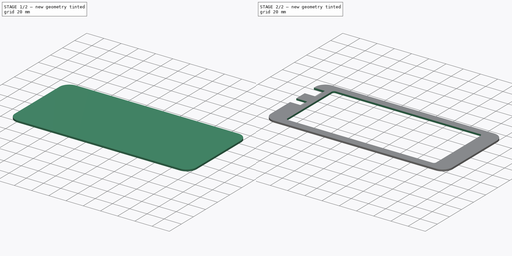
[diagram: build sequence overview — one tinted view per stage of 2, left to right]
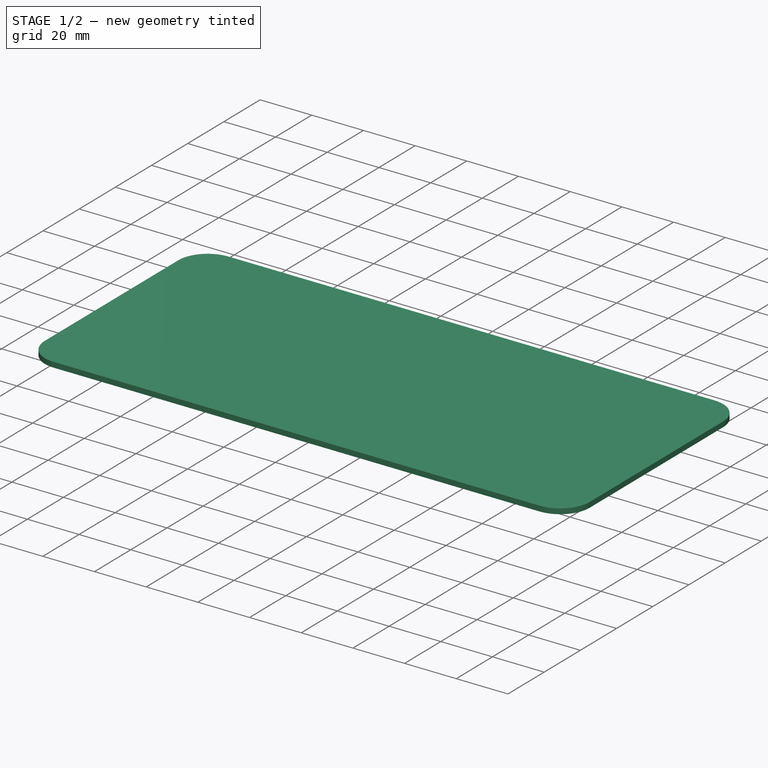
[diagram: stage 1 of 2 — iso view after this stage's code; geometry added in this stage tinted green]
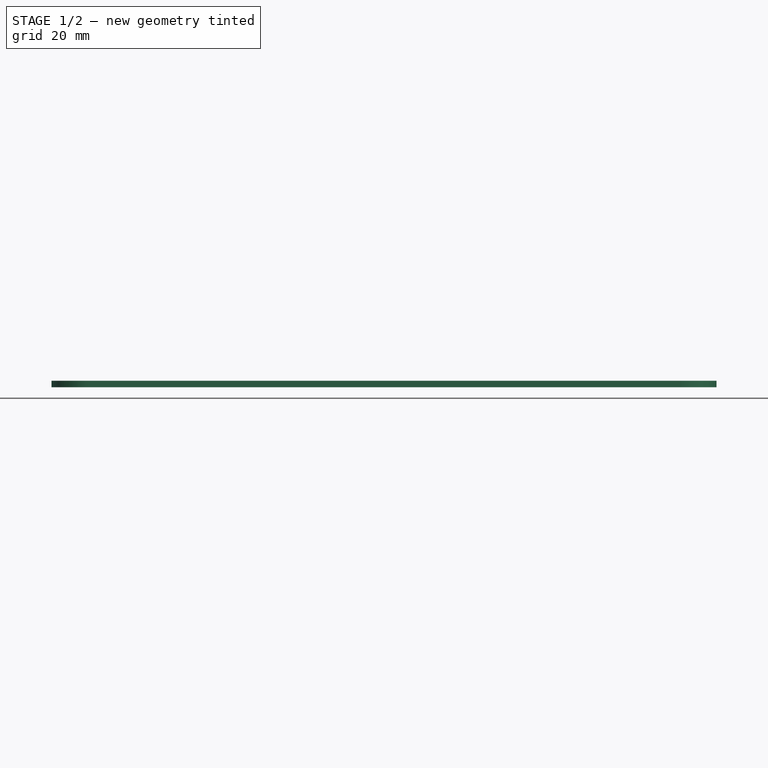
[diagram: stage 1 of 2 — front view after this stage's code; geometry added in this stage tinted green]
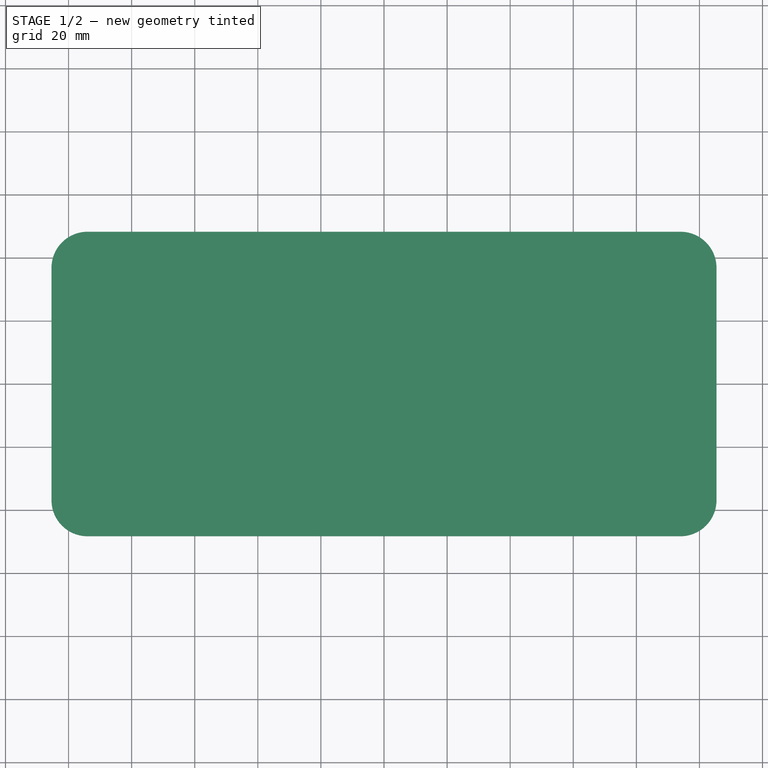
[diagram: stage 1 of 2 — top view after this stage's code; geometry added in this stage tinted green]
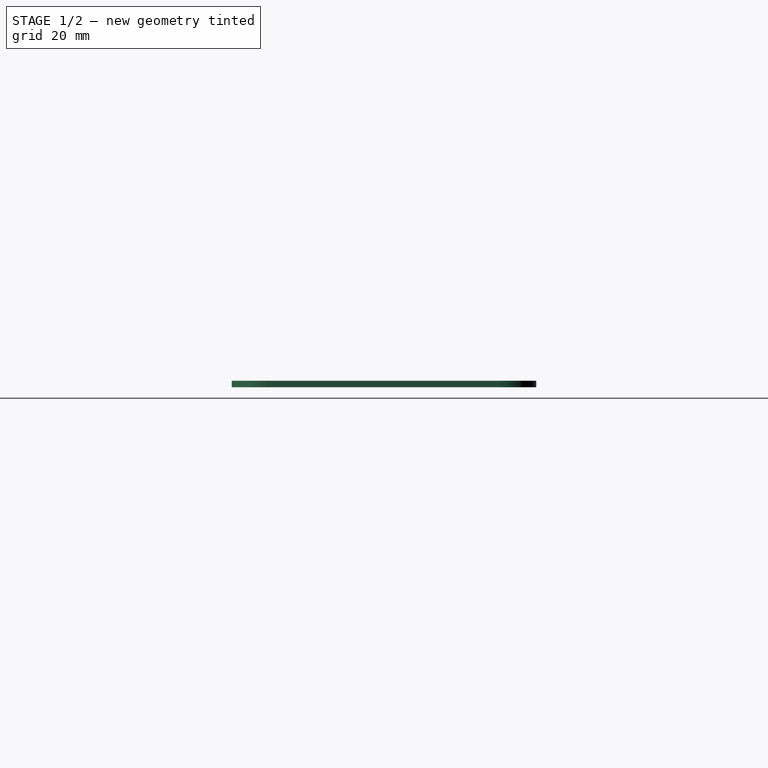
[diagram: stage 1 of 2 — right view after this stage's code; geometry added in this stage tinted green]
FCSTD DOCUMENT  (FreeCAD 0.20R29603 (Git))
Label: Front
License: All rights reserved
LicenseURL: http://en.wikipedia.org/wiki/All_rights_reserved
objects: Sketcher::SketchObject×2, PartDesign::Pad×1, PartDesign::Pocket×1, PartDesign::Body×1
note: 7 computed .brp shape members not serialized (recipe doc carries the construction recipe); baked Part::Feature solids carry a one-line shape summary decoded from their .brp

FEATURE [Sketcher::SketchObject] Sketch
  FullyConstrained = true
  MapMode = 5
  Support = -> [XY_Plane]
  sketch-geometry (10):
    g0: ArcOfCircle CenterX=-93.98 CenterY=36.83 CenterZ=0 NormalX=0 NormalY=0 NormalZ=1 AngleXU=0 Radius=11.43 StartAngle=1.5708 EndAngle=3.14159
    g1: LineSegment StartX=-93.98 StartY=48.26 StartZ=0 EndX=93.98 EndY=48.26 EndZ=0
    g2: ArcOfCircle CenterX=93.98 CenterY=36.83 CenterZ=0 NormalX=0 NormalY=0 NormalZ=1 AngleXU=0 Radius=11.43 StartAngle=-2.656e-13 EndAngle=1.5708
    g3: LineSegment StartX=105.41 StartY=36.83 StartZ=0 EndX=105.41 EndY=-36.83 EndZ=0
    g4: ArcOfCircle CenterX=93.98 CenterY=-36.83 CenterZ=0 NormalX=0 NormalY=0 NormalZ=1 AngleXU=0 Radius=11.43 StartAngle=4.71239 EndAngle=6.28319
    g5: LineSegment StartX=93.98 StartY=-48.26 StartZ=0 EndX=-93.98 EndY=-48.26 EndZ=0
    g6: ArcOfCircle CenterX=-93.98 CenterY=-36.83 CenterZ=0 NormalX=0 NormalY=0 NormalZ=1 AngleXU=0 Radius=11.43 StartAngle=3.14159 EndAngle=4.71239
    g7: LineSegment StartX=-105.41 StartY=-36.83 StartZ=0 EndX=-105.41 EndY=36.83 EndZ=0
    g8: GeomPoint X=-105.41 Y=48.26 Z=0
    g9: GeomPoint X=105.41 Y=-48.26 Z=0
  constraints (22):
    c: Tangent(g0,g1) = 1.5708
    c: Tangent(g1,g2) = 1.5708
    c: Tangent(g2,g3) = 1.5708
    c: Tangent(g3,g4) = 1.5708
    c: Tangent(g4,g5) = 1.5708
    c: Tangent(g5,g6) = 1.5708
    c: Tangent(g6,g7) = 1.5708
    c: Tangent(g7,g0) = 1.5708
    c: Horizontal(g1)
    c: Horizontal(g5)
    c: Vertical(g3)
    c: Vertical(g7)
    c: Equal(g2,g4)
    c: PointOnObject(g8,g1)
    c: PointOnObject(g8,g7)
    c: PointOnObject(g9,g3)
    c: PointOnObject(g9,g5)
    c: Symmetric(g0,g2,g-2)
    c: Symmetric(g5,g0,g-1)
    c: DistanceY(g4,g1) = 96.52
    c: DistanceX(g0,g2) = 210.82
    c: Radius(g2) = 11.43
FEATURE [PartDesign::Pad] Pad
  Direction = (0,0,1)
  Length = 2.032
  Length2 = 10
  Profile = -> Sketch
  ReferenceAxis = -> Sketch [N_Axis]
  Type = 0
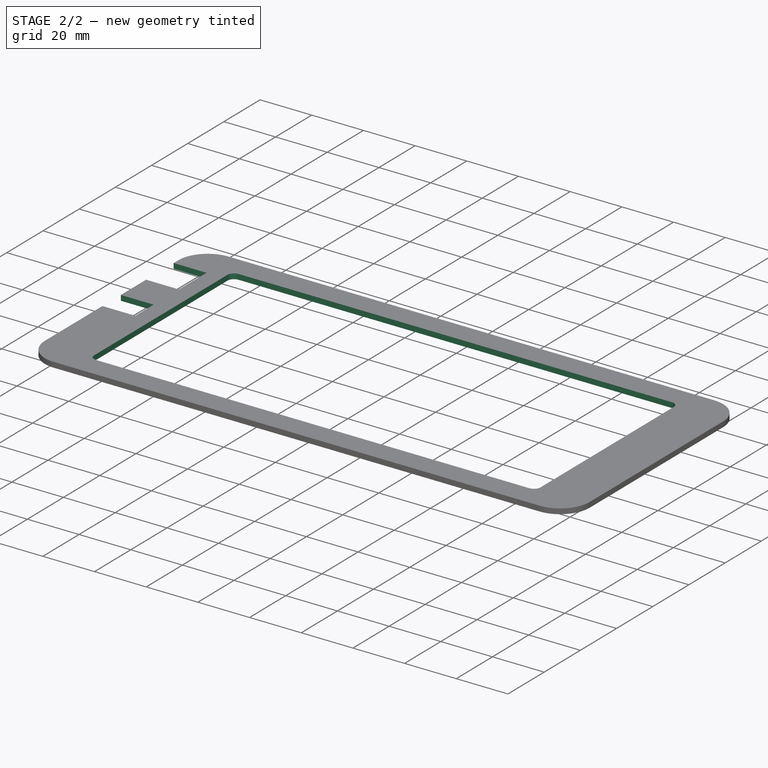
[diagram: stage 2 of 2 — iso view after this stage's code; geometry added in this stage tinted green]
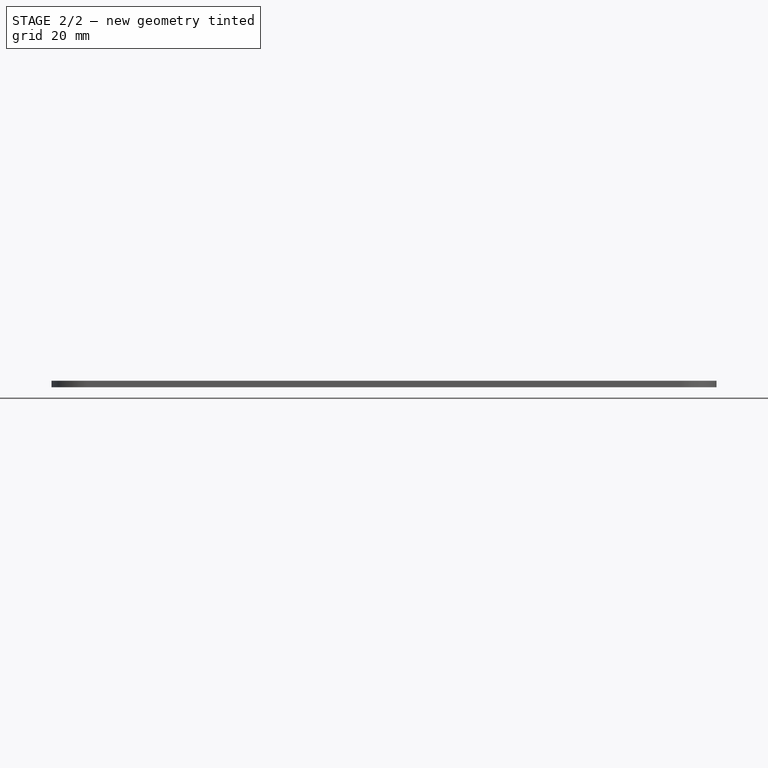
[diagram: stage 2 of 2 — front view after this stage's code; geometry added in this stage tinted green]
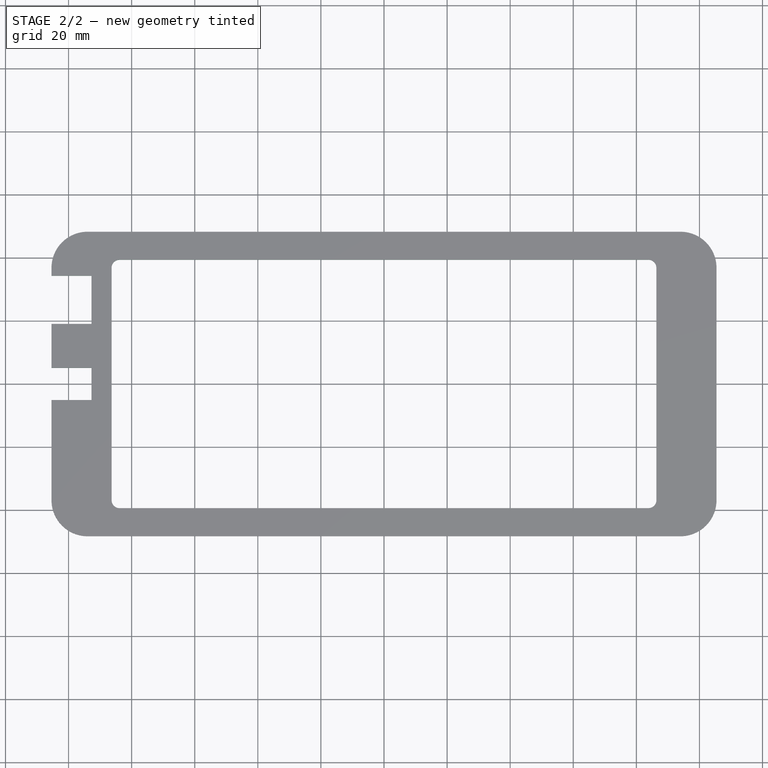
[diagram: stage 2 of 2 — top view after this stage's code; geometry added in this stage tinted green]
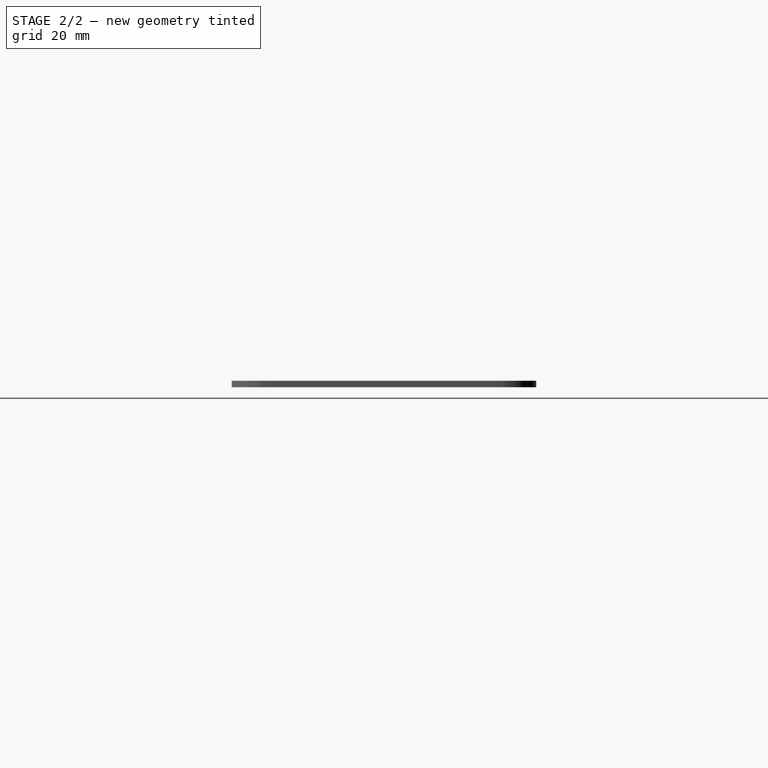
[diagram: stage 2 of 2 — right view after this stage's code; geometry added in this stage tinted green]
FEATURE [Sketcher::SketchObject] Sketch002
  FullyConstrained = true
  MapMode = 5
  Placement = pos=(0,0,0) rot=(1,0,0;3.14159rad)
  Support = -> [Pad]
  sketch-geometry (16):
    g0: ArcOfCircle CenterX=-83.82 CenterY=36.83 CenterZ=0 NormalX=0 NormalY=0 NormalZ=1 AngleXU=0 Radius=2.54 StartAngle=1.5708 EndAngle=3.14159
    g1: LineSegment StartX=-83.82 StartY=39.37 StartZ=0 EndX=83.82 EndY=39.37 EndZ=0
    g2: ArcOfCircle CenterX=83.82 CenterY=36.83 CenterZ=0 NormalX=0 NormalY=0 NormalZ=1 AngleXU=0 Radius=2.54 StartAngle=6e-16 EndAngle=1.5708
    g3: LineSegment StartX=86.36 StartY=36.83 StartZ=0 EndX=86.36 EndY=-36.83 EndZ=0
    g4: ArcOfCircle CenterX=83.82 CenterY=-36.83 CenterZ=0 NormalX=0 NormalY=0 NormalZ=1 AngleXU=0 Radius=2.54 StartAngle=4.71239 EndAngle=6.28319
    g5: LineSegment StartX=83.82 StartY=-39.37 StartZ=0 EndX=-83.82 EndY=-39.37 EndZ=0
    g6: ArcOfCircle CenterX=-83.82 CenterY=-36.83 CenterZ=0 NormalX=0 NormalY=0 NormalZ=1 AngleXU=0 Radius=2.54 StartAngle=3.14159 EndAngle=4.71239
    g7: LineSegment StartX=-86.36 StartY=-36.83 StartZ=0 EndX=-86.36 EndY=36.83 EndZ=0
    g8: LineSegment StartX=-105.41 StartY=5.08 StartZ=0 EndX=-92.71 EndY=5.08 EndZ=0
    g9: LineSegment StartX=-92.71 StartY=5.08 StartZ=0 EndX=-92.71 EndY=-5.08 EndZ=0
    g10: LineSegment StartX=-92.71 StartY=-5.08 StartZ=0 EndX=-105.41 EndY=-5.08 EndZ=0
    g11: LineSegment StartX=-105.41 StartY=-5.08 StartZ=0 EndX=-105.41 EndY=5.08 EndZ=0
    g12: LineSegment StartX=-105.41 StartY=-19.05 StartZ=0 EndX=-92.71 EndY=-19.05 EndZ=0
    g13: LineSegment StartX=-92.71 StartY=-19.05 StartZ=0 EndX=-92.71 EndY=-34.29 EndZ=0
    g14: LineSegment StartX=-92.71 StartY=-34.29 StartZ=0 EndX=-105.41 EndY=-34.29 EndZ=0
    g15: LineSegment StartX=-105.41 StartY=-34.29 StartZ=0 EndX=-105.41 EndY=-19.05 EndZ=0
  constraints (41):
    c: Tangent(g0,g1) = 1.5708
    c: Tangent(g1,g2) = 1.5708
    c: Tangent(g2,g3) = 1.5708
    c: Tangent(g3,g4) = 1.5708
    c: Tangent(g4,g5) = 1.5708
    c: Tangent(g5,g6) = 1.5708
    c: Tangent(g6,g7) = 1.5708
    c: Tangent(g7,g0) = 1.5708
    c: Horizontal(g1)
    c: Horizontal(g5)
    c: Vertical(g3)
    c: Vertical(g7)
    c: Equal(g2,g4)
    c: Symmetric(g0,g5,g-1)
    c: DistanceX(g0,g2) = 172.72
    c: DistanceY(g4,g1) = 78.74
    c: Radius(g2) = 2.54
    c: Symmetric(g0,g2,g-2)
    c: Coincident(g8,g9)
    c: Coincident(g9,g10)
    c: Coincident(g10,g11)
    c: Coincident(g11,g8)
    c: Horizontal(g8)
    c: Horizontal(g10)
    c: Vertical(g9)
    c: Coincident(g12,g13)
    c: Coincident(g13,g14)
    c: Coincident(g14,g15)
    c: Coincident(g15,g12)
    c: Horizontal(g12)
    c: Horizontal(g14)
    c: Vertical(g13)
    c: Vertical(g15)
    c: DistanceY(g11,g11) = 10.16
    c: DistanceX(g8,g8) = 12.7
    c: DistanceX(g8,g-1) = 92.71
    c: Symmetric(g8,g10,g-1)
    c: DistanceY(g12,g9) = 13.97
    c: DistanceY(g15,g15) = 15.24
    c: Vertical(g9,g12)
    c: DistanceX(g14,g14) = 12.7
FEATURE [PartDesign::Pocket] Pocket
  BaseFeature = -> Pad
  Direction = (0,0,1)
  Length = 5.0038
  Length2 = 5
  Profile = -> Sketch002
  ReferenceAxis = -> Sketch002 [N_Axis]
  Type = 0
FEATURE [PartDesign::Body] Body
  Group = -> [Sketch,Pad,Sketch002,Pocket]
  Origin = -> Origin
  Tip = -> Pocket
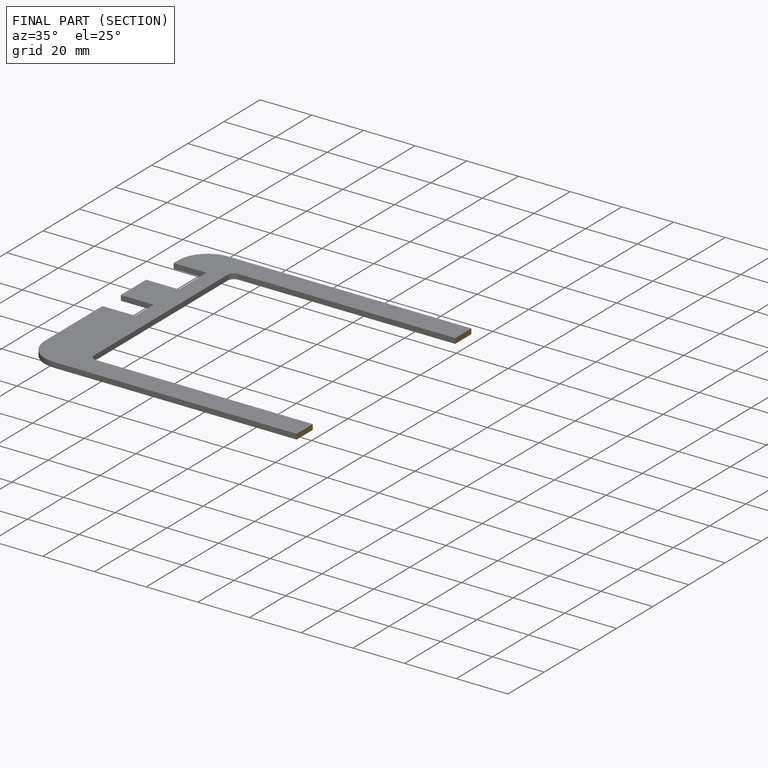
[diagram: finished part — half-section view (interior)]
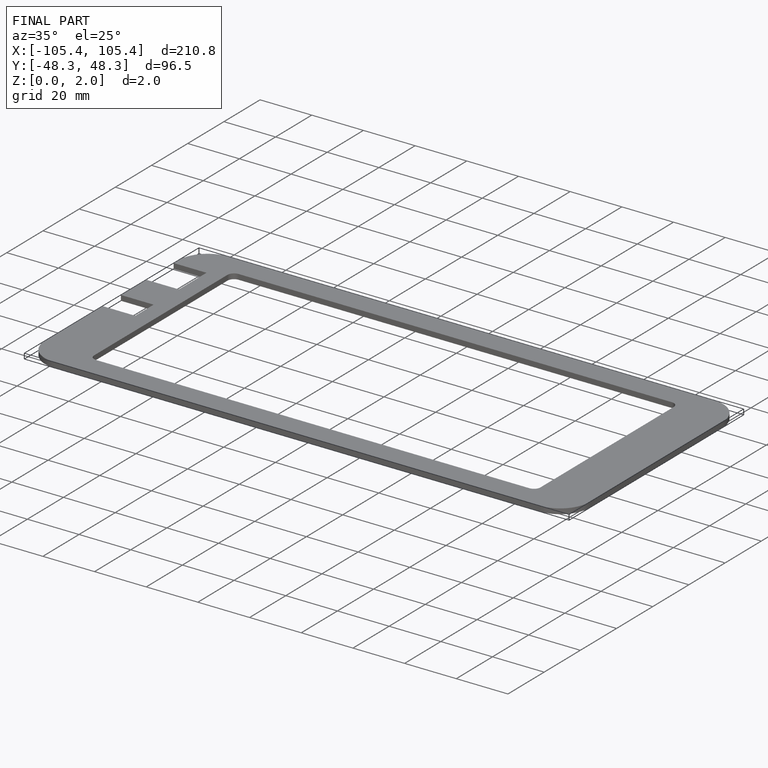
[diagram: finished part — iso view with bounding-box wireframe]
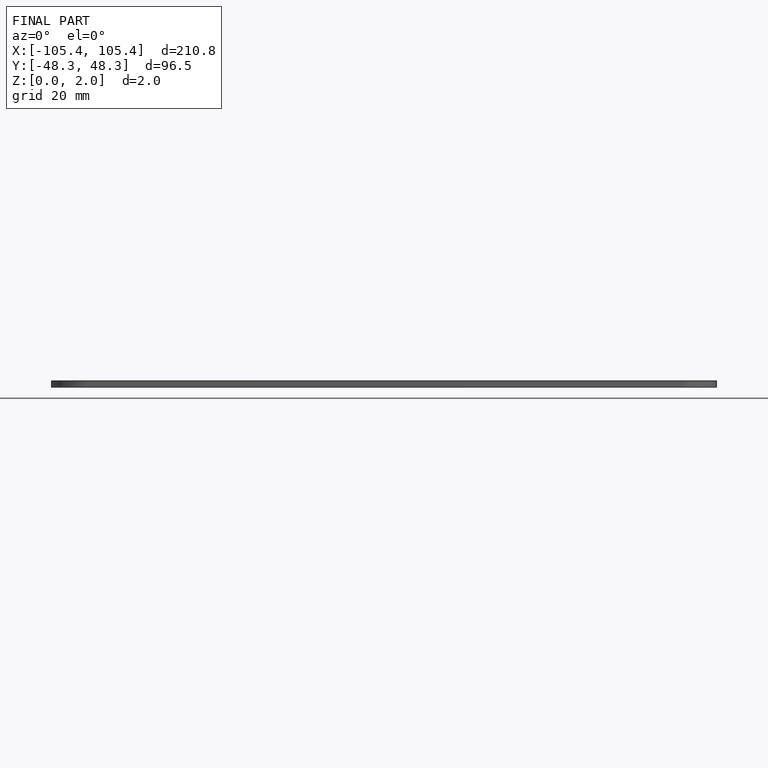
[diagram: finished part — front view with bounding-box wireframe]
